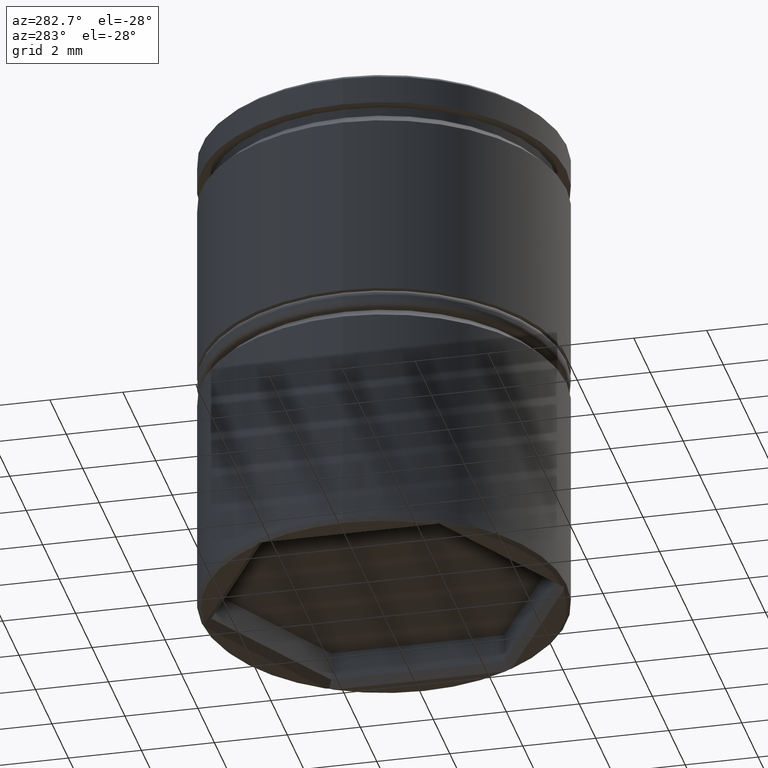
[diagram: clean part render]
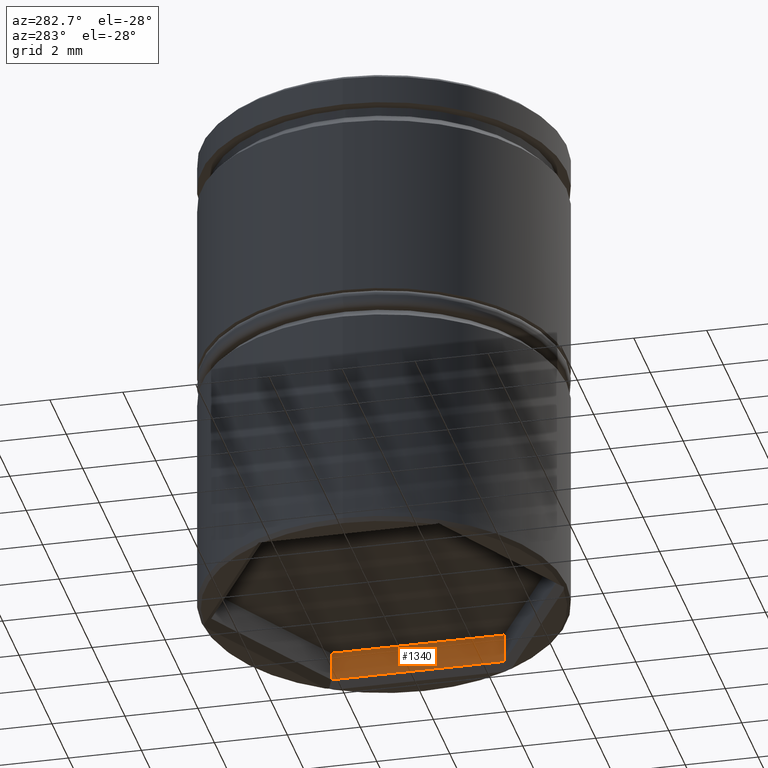
[diagram: same view with one face highlighted and labeled with its STEP entity id]
A machine part, auxiliary view. The second image highlights one B-rep face of the part: STEP entity #1340.
In plain terms, the highlighted planar face has unit normal (1, 0, -0).
Its self-contained STEP definition (entity closure, byte-faithful):
#30 = EDGE_LOOP ( 'NONE', ( #1211, #785, #449, #1181 ) ) ;
#48 = CARTESIAN_POINT ( 'NONE',  ( 4.100000000000003197, -2.367136103677467407, -13.30000000000000071 ) ) ;
#53 = VERTEX_POINT ( 'NONE', #1257 ) ;
#66 = PLANE ( 'NONE',  #839 ) ;
#93 = DIRECTION ( 'NONE',  ( 0.000000000000000000, -1.000000000000000000, 0.000000000000000000 ) ) ;
#130 = VERTEX_POINT ( 'NONE', #838 ) ;
#159 = DIRECTION ( 'NONE',  ( 1.000000000000000000, 0.000000000000000000, -0.000000000000000000 ) ) ;
#268 = DIRECTION ( 'NONE',  ( 0.000000000000000000, -1.000000000000000000, 0.000000000000000000 ) ) ;
#318 = EDGE_CURVE ( 'NONE', #736, #732, #1024, .T. ) ;
#327 = VECTOR ( 'NONE', #399, 1000.000000000000000 ) ;
#365 = CARTESIAN_POINT ( 'NONE',  ( 4.100000000000003197, 2.367136103677466963, -12.50000000000000000 ) ) ;
#374 = CARTESIAN_POINT ( 'NONE',  ( 4.100000000000003197, 2.367136103677466963, -12.50000000000000000 ) ) ;
#389 = CARTESIAN_POINT ( 'NONE',  ( 4.100000000000003197, -2.367136103677467407, -12.50000000000000000 ) ) ;
#399 = DIRECTION ( 'NONE',  ( -0.000000000000000000, -0.000000000000000000, -1.000000000000000000 ) ) ;
#403 = EDGE_CURVE ( 'NONE', #53, #130, #1247, .T. ) ;
#449 = ORIENTED_EDGE ( 'NONE', *, *, #1284, .F. ) ;
#494 = DIRECTION ( 'NONE',  ( -0.000000000000000000, 0.000000000000000000, -1.000000000000000000 ) ) ;
#511 = LINE ( 'NONE', #389, #327 ) ;
#551 = VECTOR ( 'NONE', #93, 1000.000000000000000 ) ;
#561 = DIRECTION ( 'NONE',  ( -0.000000000000000000, -0.000000000000000000, -1.000000000000000000 ) ) ;
#593 = CARTESIAN_POINT ( 'NONE',  ( 4.100000000000003197, 2.367136103677466963, -13.30000000000000071 ) ) ;
#708 = VECTOR ( 'NONE', #561, 1000.000000000000000 ) ;
#732 = VERTEX_POINT ( 'NONE', #1003 ) ;
#736 = VERTEX_POINT ( 'NONE', #593 ) ;
#785 = ORIENTED_EDGE ( 'NONE', *, *, #318, .T. ) ;
#838 = CARTESIAN_POINT ( 'NONE',  ( 4.100000000000003197, -2.367136103677467407, -12.50000000000000000 ) ) ;
#839 = AXIS2_PLACEMENT_3D ( 'NONE', #1122, #159, #494 ) ;
#902 = FACE_OUTER_BOUND ( 'NONE', #30, .T. ) ;
#978 = EDGE_CURVE ( 'NONE', #53, #736, #1007, .T. ) ;
#1003 = CARTESIAN_POINT ( 'NONE',  ( 4.100000000000003197, -2.367136103677467407, -13.30000000000000071 ) ) ;
#1007 = LINE ( 'NONE', #365, #708 ) ;
#1024 = LINE ( 'NONE', #48, #1221 ) ;
#1122 = CARTESIAN_POINT ( 'NONE',  ( 4.100000000000003197, 2.367136103677466963, -12.50000000000000000 ) ) ;
#1181 = ORIENTED_EDGE ( 'NONE', *, *, #403, .F. ) ;
#1211 = ORIENTED_EDGE ( 'NONE', *, *, #978, .T. ) ;
#1221 = VECTOR ( 'NONE', #268, 1000.000000000000000 ) ;
#1247 = LINE ( 'NONE', #374, #551 ) ;
#1257 = CARTESIAN_POINT ( 'NONE',  ( 4.100000000000003197, 2.367136103677466963, -12.50000000000000000 ) ) ;
#1284 = EDGE_CURVE ( 'NONE', #130, #732, #511, .T. ) ;
#1340 = ADVANCED_FACE ( 'NONE', ( #902 ), #66, .F. ) ;